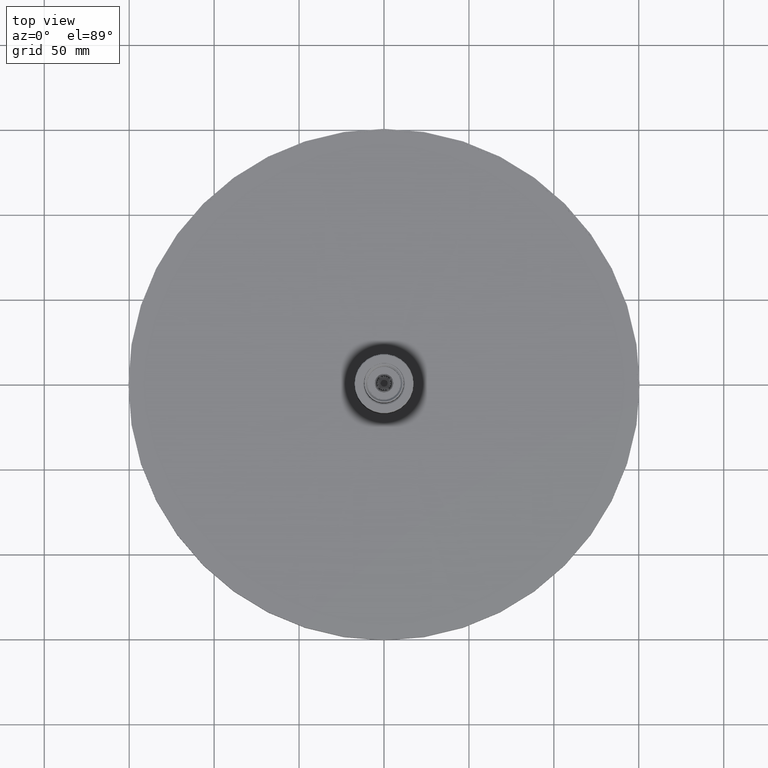
[diagram: clean part render]
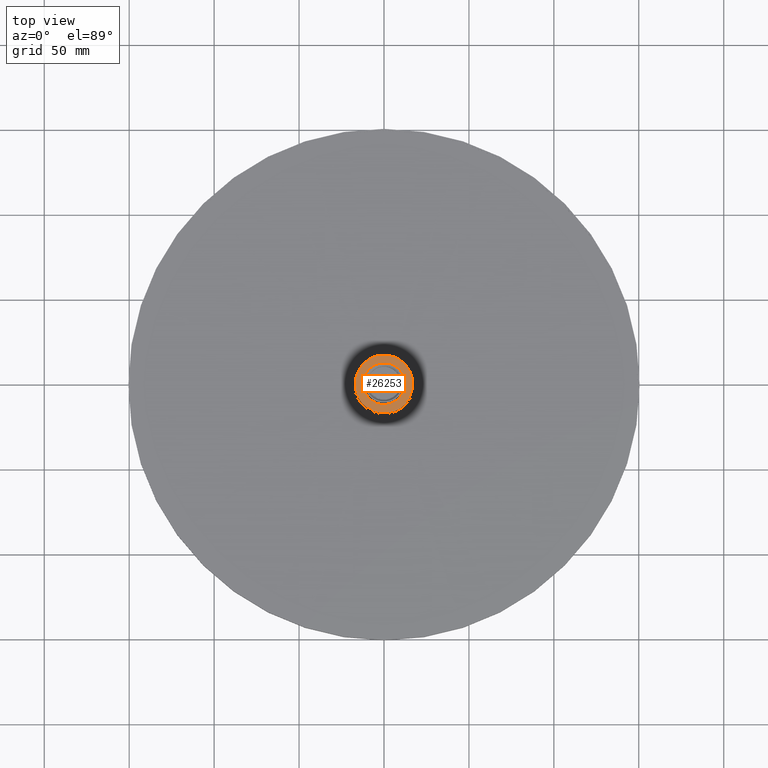
[diagram: same view with one face highlighted and labeled with its STEP entity id]
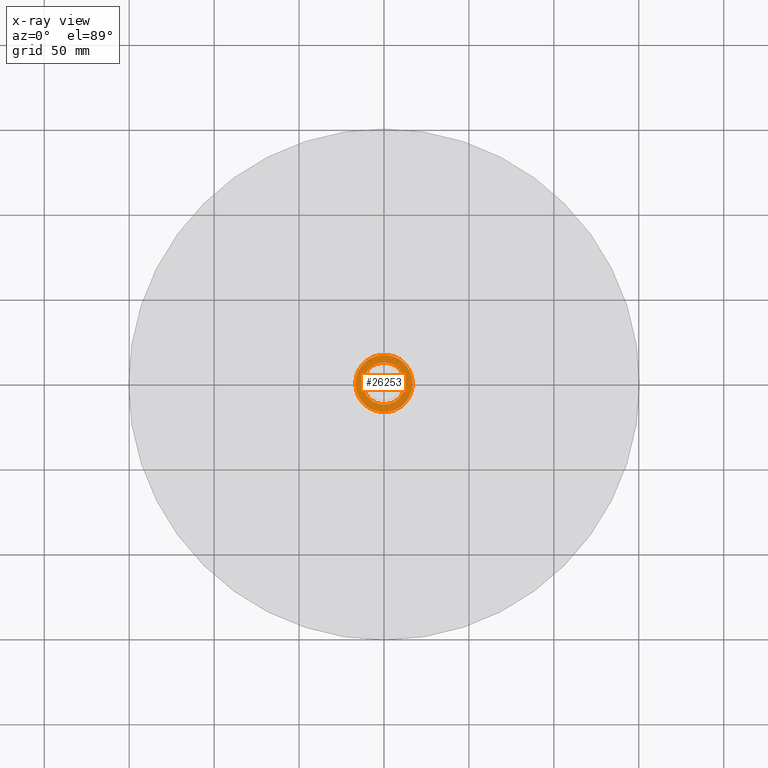
[diagram: x-ray of the same camera — body ghosted, the highlighted face saturated]
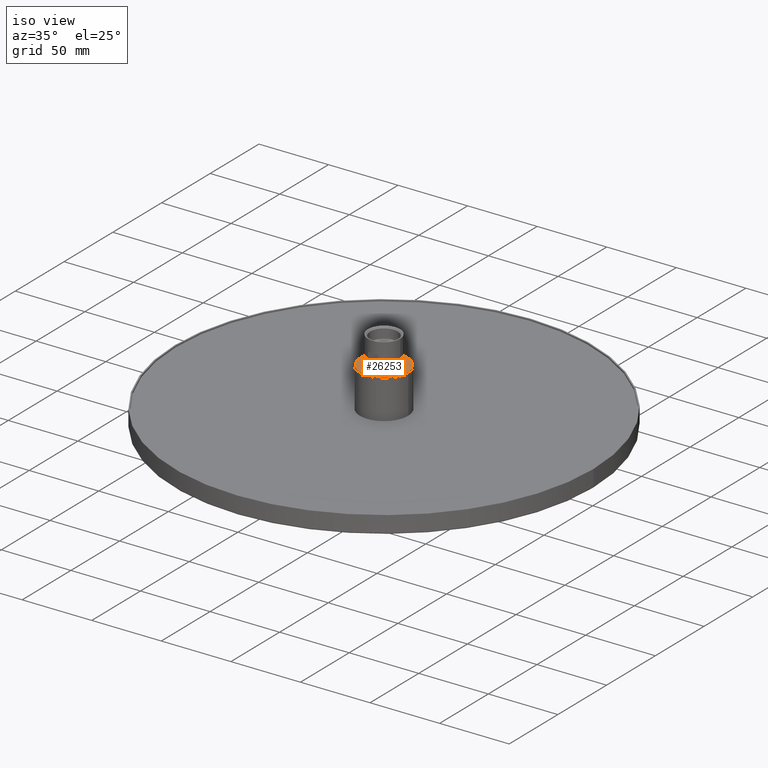
[diagram: same view with one face highlighted and labeled with its STEP entity id]
A machine part, top view. The second image highlights one B-rep face of the part: STEP entity #26253.
The next image is the same camera in x-ray: the body ghosted, the highlighted face saturated — about 0% of this face is hidden behind the body in this view.
A second angle (iso view) of the same face is appended — the face is thin or edge-on in the first view.
In plain terms, the highlighted planar face has unit normal (0, 0, 1).
Its self-contained STEP definition (entity closure, byte-faithful):
#26178=CARTESIAN_POINT('',(-16.9,2.06958473795982E-015,39.8));
#26179=VERTEX_POINT('Vertex2111',#26178);
#26180=CARTESIAN_POINT('',(16.9,-4.13916947591964E-015,39.8));
#26181=VERTEX_POINT('Vertex983',#26180);
#26182=CARTESIAN_POINT('',(-1.33226762955019E-015,2.88657986402541E-015,39.8));
#26183=DIRECTION('',(0.,0.,-1.));
#26184=DIRECTION('',(-1.,-4.83429068677864E-017,4.20439488615444E-016));
#26185=AXIS2_PLACEMENT_3D('',#26182,#26183,#26184);
#26186=CIRCLE('',#26185,16.9);
#26187=EDGE_CURVE('Edge3628',#26179,#26181,#26186,.T.);
#26189=CARTESIAN_POINT('',(3.33066907387547E-016,-5.32907051820075E-015,39.8));
#26190=DIRECTION('',(-0.,-0.,-1.));
#26191=DIRECTION('',(1.,7.04083456971075E-017,4.20439488615444E-016));
#26192=AXIS2_PLACEMENT_3D('',#26189,#26190,#26191);
#26193=CIRCLE('',#26192,16.9);
#26194=EDGE_CURVE('Edge3627',#26181,#26179,#26193,.T.);
#26224=ORIENTED_EDGE('Edgeuse7260',*,*,#26187,.F.);
#26225=ORIENTED_EDGE('Edgeuse7258',*,*,#26194,.F.);
#26226=EDGE_LOOP('',(#26224,#26225));
#26227=FACE_OUTER_BOUND('',#26226,.T.);
#26228=CARTESIAN_POINT('',(-12.3,0.,39.8));
#26229=VERTEX_POINT('Vertex2112',#26228);
#26230=CARTESIAN_POINT('',(12.3,1.50626581520152E-015,39.8));
#26231=VERTEX_POINT('Vertex984',#26230);
#26232=CARTESIAN_POINT('',(-1.88737914186277E-015,-4.44089209850063E-016,39.8)
);
#26233=DIRECTION('',(-0.,0.,1.));
#26234=DIRECTION('',(-1.,3.61048138089482E-017,5.77677020943171E-016));
#26235=AXIS2_PLACEMENT_3D('',#26232,#26233,#26234);
#26236=CIRCLE('',#26235,12.3);
#26237=EDGE_CURVE('Edge3632',#26229,#26231,#26236,.T.);
#26238=ORIENTED_EDGE('Edgeuse7269',*,*,#26237,.F.);
#26239=CARTESIAN_POINT('',(-5.55111512312578E-016,1.0547118733939E-015,39.8));
#26240=DIRECTION('',(0.,0.,1.));
#26241=DIRECTION('',(1.,3.67117025859858E-017,5.77677020943171E-016));
#26242=AXIS2_PLACEMENT_3D('',#26239,#26240,#26241);
#26243=CIRCLE('',#26242,12.3);
#26244=EDGE_CURVE('Edge3631',#26231,#26229,#26243,.T.);
#26245=ORIENTED_EDGE('Edgeuse7267',*,*,#26244,.F.);
#26246=EDGE_LOOP('',(#26238,#26245));
#26247=FACE_BOUND('',#26246,.T.);
#26248=CARTESIAN_POINT('',(0.,-3.5527136788005E-015,39.8));
#26249=DIRECTION('',(0.,0.,1.));
#26250=DIRECTION('',(-1.,0.,0.));
#26251=AXIS2_PLACEMENT_3D('',#26248,#26249,#26250);
#26252=PLANE('',#26251);
#26253=ADVANCED_FACE('Face779',(#26227,#26247),#26252,.T.);